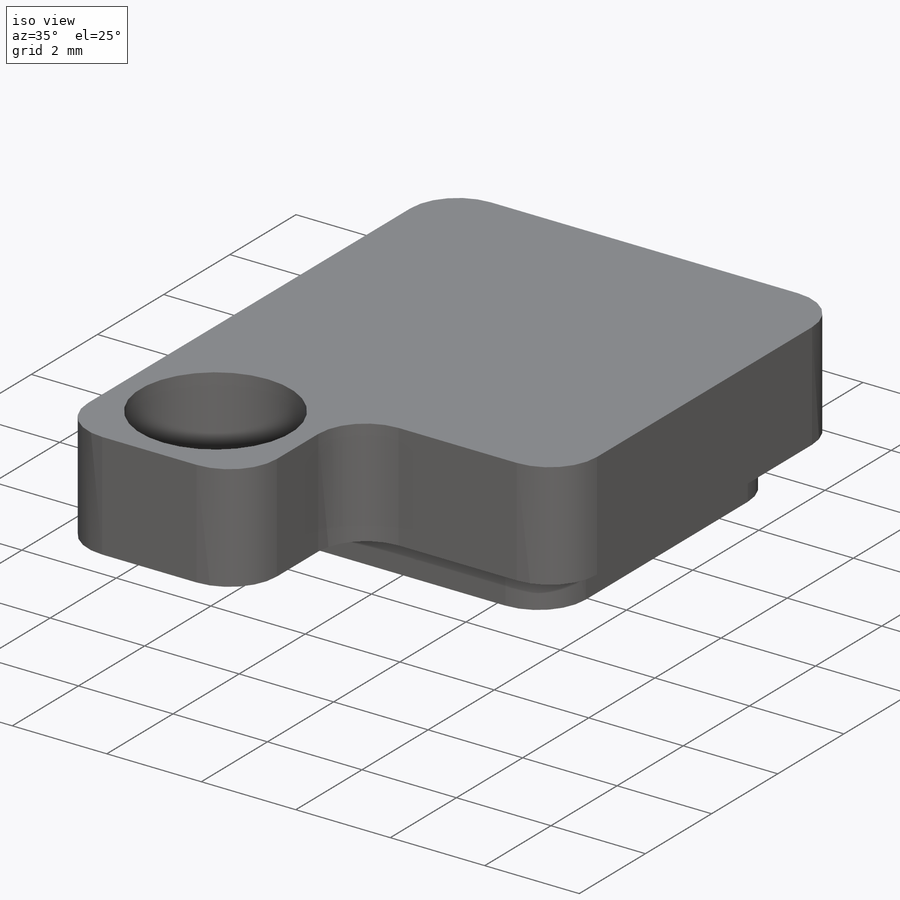
[diagram: iso view]
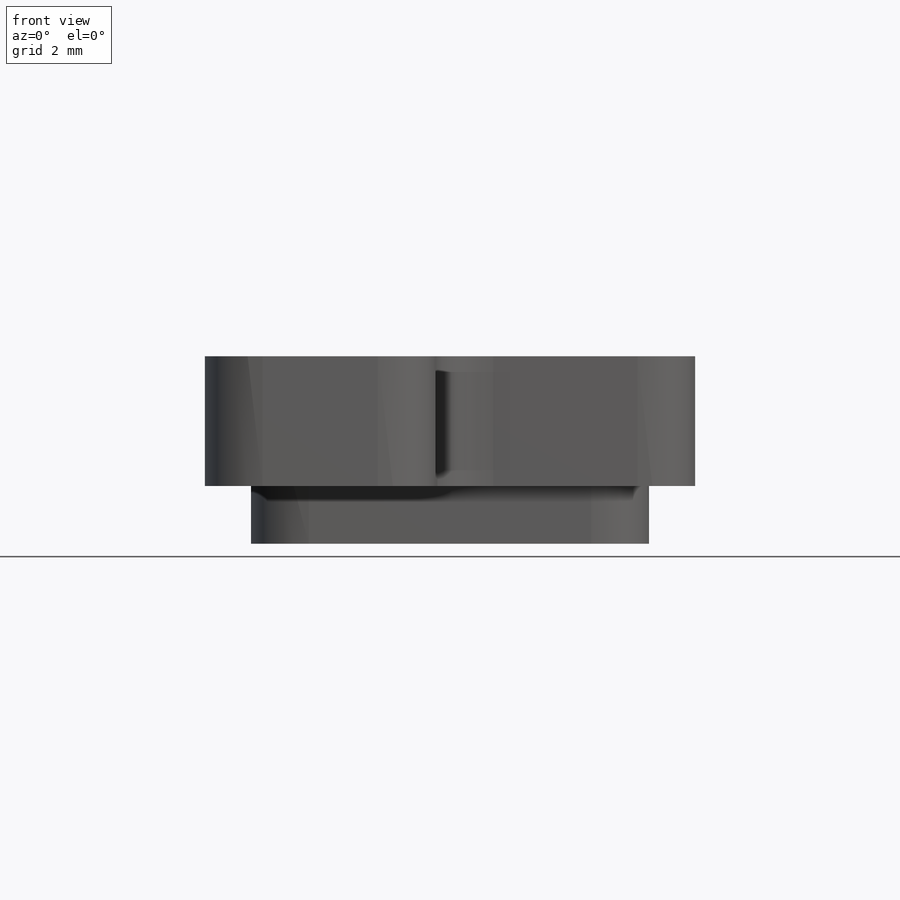
[diagram: front view]
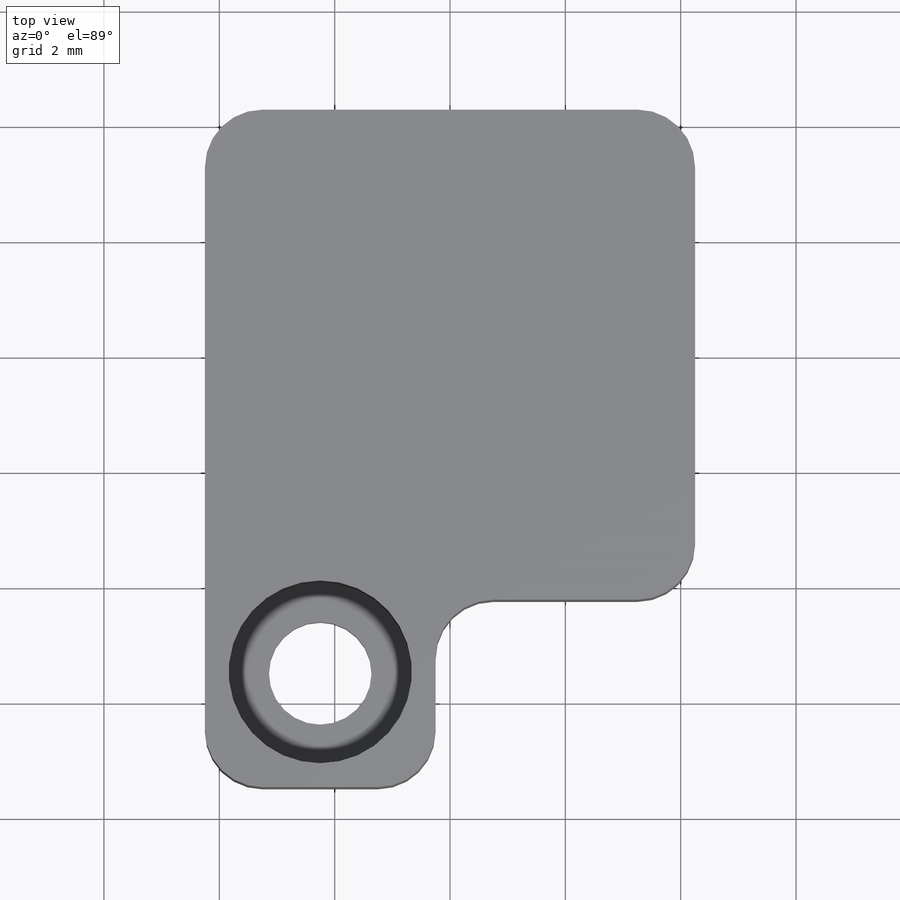
[diagram: top view]
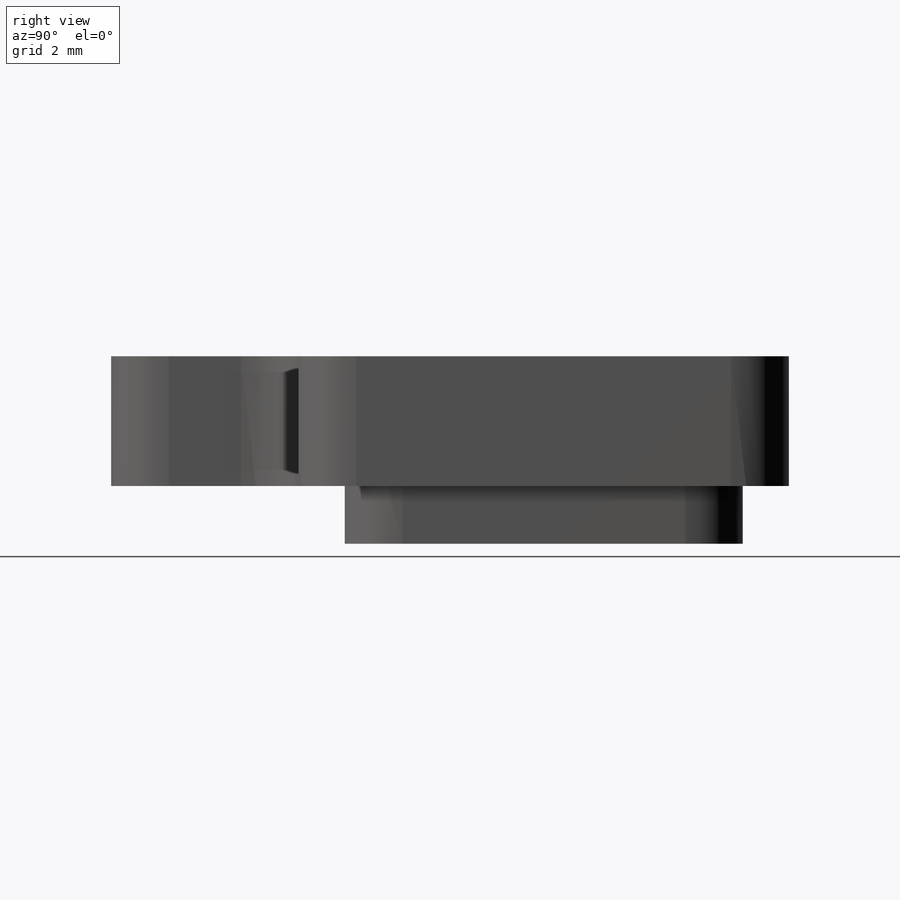
[diagram: right view]
SOLIDWORKS PART (.sldprt)
format: sldprt  version: not decoded by parser v0  size: 213,504 bytes
history: native  units: mm
features: sketch x5, extrude x3, material x1, hole x1, fillet x1 (+16 scaffold rows collapsed)
feature tree (27):
  scaffold x16  (default folders/planes/origin — collapsed)
  material  "Material <not specified>"
  sketch  "Sketch1"  dims[D1=8.5mm D2=8.5mm]
  extrude  "Extrude1"  Depth=2.25mm
  sketch  "Sketch7"  dims[D1=6.9mm D2=6.9mm]
  extrude  "Extrude5"  Depth=1mm
  sketch  "Sketch3"  dims[D1=4.0mm]
  extrude  "Extrude3"  Depth=3.25mm
  hole  "CBORE for #0 Socket Head Cap Screw1"  Diameter=1.778mm Depth=3.25mm
  sketch  "3DSketch2"  dims[D1=2.0mm D2=2.0mm]
  sketch  "Sketch6"  dims[hole-wizard template sketch: 42 standard entries collapsed; hole parameters kept: c12.Thru Hole Depth=3.25mm c12.C'Bore Dia.=3.175mm c12.C'Bore Depth=1.524mm]
  fillet  "Fillet2"  Radius=1mm
decode coverage: 10 of 10 modeling features carry decoded parameters
note: ~ marks probable driven/reference dimensions
note: suppression state not decoded; provenance and decode notes live in map.json
